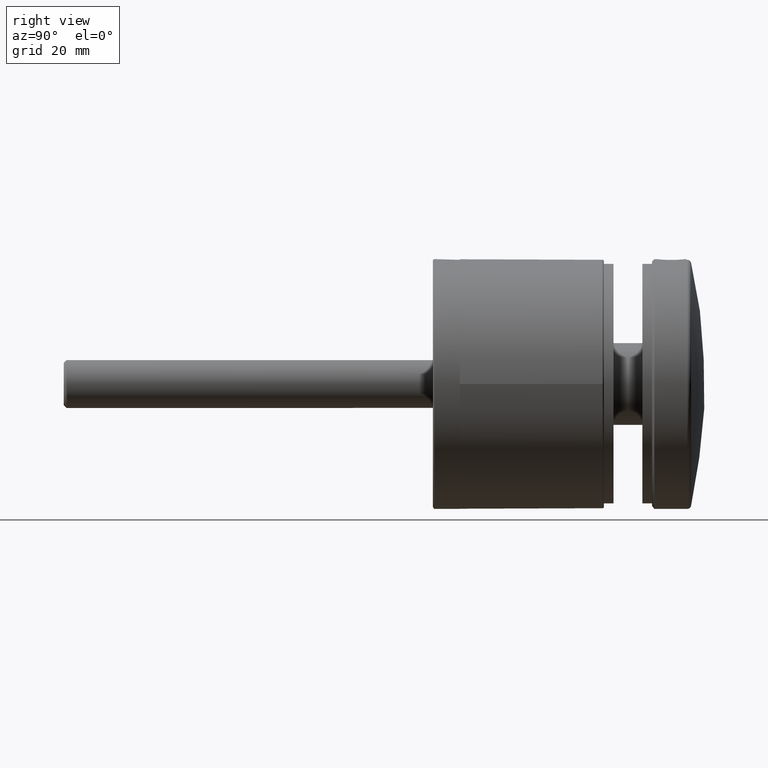
[diagram: clean part render]
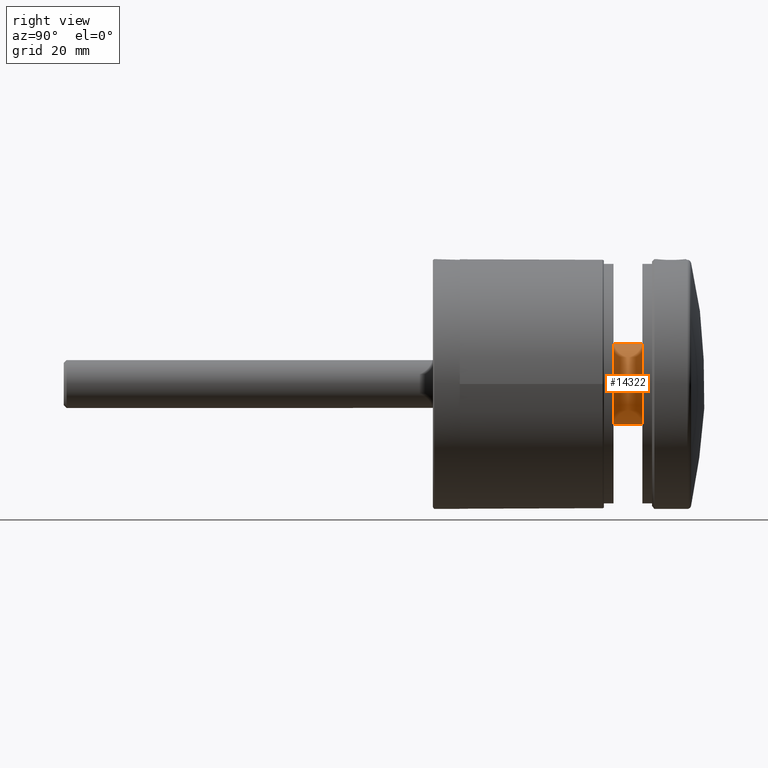
[diagram: same view with one face highlighted and labeled with its STEP entity id]
A machine part, right view. The second image highlights one B-rep face of the part: STEP entity #14322.
In plain terms, the highlighted cylindrical surface (bore or boss wall) has radius 8.5 mm, axis along (0, 1, 0).
Its self-contained STEP definition (entity closure, byte-faithful):
#3916 = ORIENTED_EDGE ( 'NONE', *, *, #14512, .F. ) ;
#4108 = VERTEX_POINT ( 'NONE', #31557 ) ;
#4309 = CIRCLE ( 'NONE', #5611, 8.500000000000076383 ) ;
#4954 = CARTESIAN_POINT ( 'NONE',  ( 0.000000000000000000, 8.000000000000000000, 0.000000000000000000 ) ) ;
#5611 = AXIS2_PLACEMENT_3D ( 'NONE', #13950, #32688, #6103 ) ;
#6103 = DIRECTION ( 'NONE',  ( 0.000000000000000000, 0.000000000000000000, 1.000000000000000000 ) ) ;
#6222 = AXIS2_PLACEMENT_3D ( 'NONE', #4954, #10458, #34076 ) ;
#10458 = DIRECTION ( 'NONE',  ( 0.000000000000000000, -1.000000000000000000, 0.000000000000000000 ) ) ;
#12083 = CARTESIAN_POINT ( 'NONE',  ( 0.000000000000000000, 2.000000000000000000, 0.000000000000000000 ) ) ;
#12774 = DIRECTION ( 'NONE',  ( 0.000000000000000000, 0.000000000000000000, 1.000000000000000000 ) ) ;
#13950 = CARTESIAN_POINT ( 'NONE',  ( 0.000000000000000000, 8.000000000000000000, 0.000000000000000000 ) ) ;
#14322 = ADVANCED_FACE ( 'NONE', ( #22360, #27817 ), #20717, .T. ) ;
#14512 = EDGE_CURVE ( 'NONE', #20939, #20939, #22778, .T. ) ;
#14789 = EDGE_LOOP ( 'NONE', ( #29958 ) ) ;
#16887 = AXIS2_PLACEMENT_3D ( 'NONE', #12083, #28726, #12774 ) ;
#20656 = EDGE_CURVE ( 'NONE', #4108, #4108, #4309, .T. ) ;
#20717 = CYLINDRICAL_SURFACE ( 'NONE', #6222, 8.500000000000076383 ) ;
#20939 = VERTEX_POINT ( 'NONE', #21431 ) ;
#21431 = CARTESIAN_POINT ( 'NONE',  ( 0.000000000000000000, 2.000000000000000000, 8.500000000000076383 ) ) ;
#22360 = FACE_OUTER_BOUND ( 'NONE', #30561, .T. ) ;
#22778 = CIRCLE ( 'NONE', #16887, 8.500000000000076383 ) ;
#27817 = FACE_OUTER_BOUND ( 'NONE', #14789, .T. ) ;
#28726 = DIRECTION ( 'NONE',  ( -0.000000000000000000, -1.000000000000000000, -0.000000000000000000 ) ) ;
#29958 = ORIENTED_EDGE ( 'NONE', *, *, #20656, .F. ) ;
#30561 = EDGE_LOOP ( 'NONE', ( #3916 ) ) ;
#31557 = CARTESIAN_POINT ( 'NONE',  ( 0.000000000000000000, 8.000000000000000000, 8.500000000000076383 ) ) ;
#32688 = DIRECTION ( 'NONE',  ( 0.000000000000000000, 1.000000000000000000, 0.000000000000000000 ) ) ;
#34076 = DIRECTION ( 'NONE',  ( 0.000000000000000000, 0.000000000000000000, -1.000000000000000000 ) ) ;